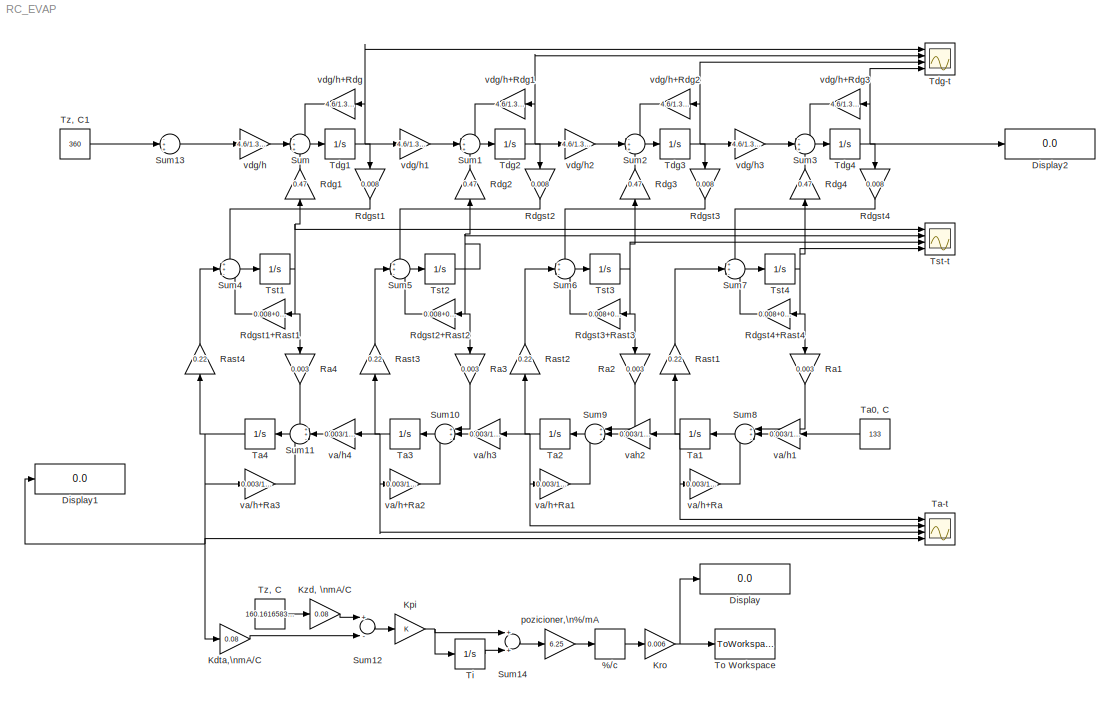
MODEL RC_EVAP
KIND model
BLOCK [RateLimiter] %//c
  Commented = on
  FallingSlewLimit = -5
  RisingSlewLimit = 5
  SID = 115
  SampleTimeMode = inherited
BLOCK [Display] Display
  Commented = on
  Decimation = 1
  Ports = [1]
  SID = 170
BLOCK [Display] Display1
  Decimation = 1
  Ports = [1]
  SID = 177
BLOCK [Display] Display2
  Decimation = 1
  Ports = [1]
  SID = 178
BLOCK [Gain] Kdta,\nmA//C
  Commented = on
  Gain = 0.08
  OutDataTypeStr = Inherit: Inherit via internal rule
  ParamDataTypeStr = Inherit: Inherit via internal rule
  SID = 59
  SaturateOnIntegerOverflow = off
BLOCK [Gain] Kpi
  Commented = on
  OutDataTypeStr = Inherit: Inherit via internal rule
  ParamDataTypeStr = Inherit: Inherit via internal rule
  SID = 133
  SaturateOnIntegerOverflow = off
BLOCK [Gain] Kro
  Commented = on
  Gain = 0.006
  OutDataTypeStr = Inherit: Inherit via internal rule
  ParamDataTypeStr = Inherit: Inherit via internal rule
  SID = 117
  SaturateOnIntegerOverflow = off
BLOCK [Gain] Kzd, \nmA//C
  Commented = on
  Gain = 0.08
  OutDataTypeStr = Inherit: Inherit via internal rule
  ParamDataTypeStr = Inherit: Inherit via internal rule
  SID = 81
  SaturateOnIntegerOverflow = off
BLOCK [Gain] Ra1
  Gain = 0.003
  OutDataTypeStr = Inherit: Inherit via internal rule
  ParamDataTypeStr = Inherit: Inherit via internal rule
  SID = 18
  SaturateOnIntegerOverflow = off
BLOCK [Gain] Ra2
  Gain = 0.003
  OutDataTypeStr = Inherit: Inherit via internal rule
  ParamDataTypeStr = Inherit: Inherit via internal rule
  SID = 19
  SaturateOnIntegerOverflow = off
BLOCK [Gain] Ra3
  Gain = 0.003
  OutDataTypeStr = Inherit: Inherit via internal rule
  ParamDataTypeStr = Inherit: Inherit via internal rule
  SID = 20
  SaturateOnIntegerOverflow = off
BLOCK [Gain] Ra4
  Gain = 0.003
  OutDataTypeStr = Inherit: Inherit via internal rule
  ParamDataTypeStr = Inherit: Inherit via internal rule
  SID = 21
  SaturateOnIntegerOverflow = off
BLOCK [Gain] Rast1
  Gain = 0.22
  OutDataTypeStr = Inherit: Inherit via internal rule
  ParamDataTypeStr = Inherit: Inherit via internal rule
  SID = 22
  SaturateOnIntegerOverflow = off
BLOCK [Gain] Rast2
  Gain = 0.22
  OutDataTypeStr = Inherit: Inherit via internal rule
  ParamDataTypeStr = Inherit: Inherit via internal rule
  SID = 23
  SaturateOnIntegerOverflow = off
BLOCK [Gain] Rast3
  Gain = 0.22
  OutDataTypeStr = Inherit: Inherit via internal rule
  ParamDataTypeStr = Inherit: Inherit via internal rule
  SID = 24
  SaturateOnIntegerOverflow = off
BLOCK [Gain] Rast4
  Gain = 0.22
  OutDataTypeStr = Inherit: Inherit via internal rule
  ParamDataTypeStr = Inherit: Inherit via internal rule
  SID = 25
  SaturateOnIntegerOverflow = off
BLOCK [Gain] Rdg1
  Gain = 0.47
  OutDataTypeStr = Inherit: Inherit via internal rule
  ParamDataTypeStr = Inherit: Inherit via internal rule
  SID = 6
  SaturateOnIntegerOverflow = off
BLOCK [Gain] Rdg2
  Gain = 0.47
  OutDataTypeStr = Inherit: Inherit via internal rule
  ParamDataTypeStr = Inherit: Inherit via internal rule
  SID = 7
  SaturateOnIntegerOverflow = off
BLOCK [Gain] Rdg3
  Gain = 0.47
  OutDataTypeStr = Inherit: Inherit via internal rule
  ParamDataTypeStr = Inherit: Inherit via internal rule
  SID = 8
  SaturateOnIntegerOverflow = off
BLOCK [Gain] Rdg4
  Gain = 0.47
  OutDataTypeStr = Inherit: Inherit via internal rule
  ParamDataTypeStr = Inherit: Inherit via internal rule
  SID = 9
  SaturateOnIntegerOverflow = off
BLOCK [Gain] Rdgst1
  Gain = 0.008
  OutDataTypeStr = Inherit: Inherit via internal rule
  ParamDataTypeStr = Inherit: Inherit via internal rule
  SID = 10
  SaturateOnIntegerOverflow = off
BLOCK [Gain] Rdgst1+Rast1
  Gain = 0.008+0.22
  OutDataTypeStr = Inherit: Inherit via internal rule
  ParamDataTypeStr = Inherit: Inherit via internal rule
  SID = 11
  SaturateOnIntegerOverflow = off
BLOCK [Gain] Rdgst2
  Gain = 0.008
  OutDataTypeStr = Inherit: Inherit via internal rule
  ParamDataTypeStr = Inherit: Inherit via internal rule
  SID = 12
  SaturateOnIntegerOverflow = off
BLOCK [Gain] Rdgst2+Rast2
  Gain = 0.008+0.22
  OutDataTypeStr = Inherit: Inherit via internal rule
  ParamDataTypeStr = Inherit: Inherit via internal rule
  SID = 13
  SaturateOnIntegerOverflow = off
BLOCK [Gain] Rdgst3
  Gain = 0.008
  OutDataTypeStr = Inherit: Inherit via internal rule
  ParamDataTypeStr = Inherit: Inherit via internal rule
  SID = 14
  SaturateOnIntegerOverflow = off
BLOCK [Gain] Rdgst3+Rast3
  Gain = 0.008+0.22
  OutDataTypeStr = Inherit: Inherit via internal rule
  ParamDataTypeStr = Inherit: Inherit via internal rule
  SID = 15
  SaturateOnIntegerOverflow = off
BLOCK [Gain] Rdgst4
  Gain = 0.008
  OutDataTypeStr = Inherit: Inherit via internal rule
  ParamDataTypeStr = Inherit: Inherit via internal rule
  SID = 16
  SaturateOnIntegerOverflow = off
BLOCK [Gain] Rdgst4+Rast4
  Gain = 0.008+0.22
  OutDataTypeStr = Inherit: Inherit via internal rule
  ParamDataTypeStr = Inherit: Inherit via internal rule
  SID = 17
  SaturateOnIntegerOverflow = off
BLOCK [Sum] Sum
  IconShape = round
  InputSameDT = off
  Inputs = -++
  OutDataTypeStr = Inherit: Inherit via internal rule
  Ports = [3, 1]
  SID = 26
  SaturateOnIntegerOverflow = off
BLOCK [Sum] Sum1
  IconShape = round
  InputSameDT = off
  Inputs = -++
  OutDataTypeStr = Inherit: Inherit via internal rule
  Ports = [3, 1]
  SID = 27
  SaturateOnIntegerOverflow = off
BLOCK [Sum] Sum10
  IconShape = round
  InputSameDT = off
  Inputs = ++-
  OutDataTypeStr = Inherit: Inherit via internal rule
  Ports = [3, 1]
  SID = 28
  SaturateOnIntegerOverflow = off
BLOCK [Sum] Sum11
  IconShape = round
  InputSameDT = off
  Inputs = ++-
  OutDataTypeStr = Inherit: Inherit via internal rule
  Ports = [3, 1]
  SID = 29
  SaturateOnIntegerOverflow = off
BLOCK [Sum] Sum12
  Commented = on
  InputSameDT = off
  Inputs = +-
  OutDataTypeStr = Inherit: Inherit via internal rule
  Ports = [2, 1]
  SID = 30
  SaturateOnIntegerOverflow = off
BLOCK [Sum] Sum13
  IconShape = round
  InputSameDT = off
  Inputs = -++
  OutDataTypeStr = Inherit: Inherit via internal rule
  Ports = [3, 1]
  SID = 173
  SaturateOnIntegerOverflow = off
BLOCK [Sum] Sum14
  Commented = on
  InputSameDT = off
  OutDataTypeStr = Inherit: Inherit via internal rule
  Ports = [2, 1]
  SID = 131
  SaturateOnIntegerOverflow = off
BLOCK [Sum] Sum2
  IconShape = round
  InputSameDT = off
  Inputs = -++
  OutDataTypeStr = Inherit: Inherit via internal rule
  Ports = [3, 1]
  SID = 32
  SaturateOnIntegerOverflow = off
BLOCK [Sum] Sum3
  IconShape = round
  InputSameDT = off
  Inputs = -++
  OutDataTypeStr = Inherit: Inherit via internal rule
  Ports = [3, 1]
  SID = 33
  SaturateOnIntegerOverflow = off
BLOCK [Sum] Sum4
  IconShape = round
  InputSameDT = off
  Inputs = ++-
  OutDataTypeStr = Inherit: Inherit via internal rule
  Ports = [3, 1]
  SID = 34
  SaturateOnIntegerOverflow = off
BLOCK [Sum] Sum5
  IconShape = round
  InputSameDT = off
  Inputs = ++-
  OutDataTypeStr = Inherit: Inherit via internal rule
  Ports = [3, 1]
  SID = 35
  SaturateOnIntegerOverflow = off
BLOCK [Sum] Sum6
  IconShape = round
  InputSameDT = off
  Inputs = ++-
  OutDataTypeStr = Inherit: Inherit via internal rule
  Ports = [3, 1]
  SID = 36
  SaturateOnIntegerOverflow = off
BLOCK [Sum] Sum7
  IconShape = round
  InputSameDT = off
  Inputs = ++-
  OutDataTypeStr = Inherit: Inherit via internal rule
  Ports = [3, 1]
  SID = 37
  SaturateOnIntegerOverflow = off
BLOCK [Sum] Sum8
  IconShape = round
  InputSameDT = off
  Inputs = ++-
  OutDataTypeStr = Inherit: Inherit via internal rule
  Ports = [3, 1]
  SID = 38
  SaturateOnIntegerOverflow = off
BLOCK [Sum] Sum9
  IconShape = round
  InputSameDT = off
  Inputs = ++-
  OutDataTypeStr = Inherit: Inherit via internal rule
  Ports = [3, 1]
  SID = 39
  SaturateOnIntegerOverflow = off
BLOCK [Scope] Ta-t
  Floating = off
  NumInputPorts = 4
  Ports = [4]
  SID = 47
  ScopeSpecificationString = Simulink.scopes.TimeScopeBlockCfg('CurrentConfiguration', extmgr.ConfigurationSet(extmgr.Configuration('Core','General UI',true),extmgr.Configuration('Core','Source UI',true),extmgr.Configuration('Sources','WiredSimulink',true,'DataLogging',true,'DataLoggingVariableName','TA','DataLoggingSaveFormat','StructureWithTime','SampleTime','0','DataLoggingDecimation','1','DataLoggingDecimateData',true),ex...<+3755ch>
BLOCK [Constant] Ta0, C
  SID = 158
  Value = 133
BLOCK [Integrator] Ta1
  InitialCondition = 143.67340
  Ports = [1, 1]
  SID = 49
BLOCK [Integrator] Ta2
  InitialCondition = 148.736080
  Ports = [1, 1]
  SID = 50
BLOCK [Integrator] Ta3
  InitialCondition = 154.220450
  Ports = [1, 1]
  SID = 51
BLOCK [Integrator] Ta4
  InitialCondition = 160.161650
  Ports = [1, 1]
  SID = 52
BLOCK [Scope] Tdg-t
  Floating = off
  NumInputPorts = 4
  Ports = [4]
  SID = 41
  ScopeSpecificationString = Simulink.scopes.TimeScopeBlockCfg('CurrentConfiguration', extmgr.ConfigurationSet(extmgr.Configuration('Core','General UI',true),extmgr.Configuration('Core','Source UI',true),extmgr.Configuration('Sources','WiredSimulink',true,'DataLogging',true,'DataLoggingVariableName','TDG','DataLoggingSaveFormat','StructureWithTime','DataLoggingDecimation','1','DataLoggingDecimateData',true),extmgr.Configurati...<+3745ch>
BLOCK [Integrator] Tdg1
  InitialCondition = 283.30650
  Ports = [1, 1]
  SID = 43
BLOCK [Integrator] Tdg2
  InitialCondition = 267.89660
  Ports = [1, 1]
  SID = 44
BLOCK [Integrator] Tdg3
  InitialCondition = 253.67150
  Ports = [1, 1]
  SID = 45
BLOCK [Integrator] Tdg4
  InitialCondition = 240.54030
  Ports = [1, 1]
  SID = 46
BLOCK [Integrator] Ti
  Commented = on
  InitialCondition = 8000
  LowerSaturationLimit = 6012
  Ports = [1, 1]
  SID = 141
  UpperSaturationLimit = 8012
BLOCK [ToWorkspace] To Workspace
  Commented = on
  MaxDataPoints = inf
  Ports = [1]
  SID = 110
  SampleTime = -1
  VariableName = Tdg0
BLOCK [Scope] Tst-t
  Floating = off
  NumInputPorts = 4
  Ports = [4]
  SID = 54
  ScopeSpecificationString = C++SS(StrPVP('Location','[5, 49, 1371, 737]'),StrPVP('Open','off'),StrPVP('ZoomMode','xonly'),MxPVP('AxesTitles',53,'struct(''axes1'',''%<SignalLabel>'',''axes2'',''%<SignalLabel>'',''axes3'',''%<SignalLabel>'',''axes4'',''%<SignalLabel>'')'),MxPVP('ScopeGraphics',56,'struct(''FigureColor'',''[0.5 0.5 0.5]'',''AxesColor'',''[0 0 0]'',''AxesTickColor'',''[1 1 1]'',''LineColors'',''[1 1 0;1 0 1;0 1 ...<+461ch>
BLOCK [Integrator] Tst1
  InitialCondition = 164.48250
  Ports = [1, 1]
  SID = 55
BLOCK [Integrator] Tst2
  InitialCondition = 158.20900
  Ports = [1, 1]
  SID = 56
BLOCK [Integrator] Tst3
  InitialCondition = 152.41800
  Ports = [1, 1]
  SID = 57
BLOCK [Integrator] Tst4
  InitialCondition = 147.07220
  Ports = [1, 1]
  SID = 58
BLOCK [Constant] Tz, C
  Commented = on
  SID = 40
  Value = 160.1616583845354
BLOCK [Constant] Tz, C1
  SID = 172
  Value = 360
BLOCK [Gain] pozicioner,\n%//mA
  Commented = on
  Gain = 6.25
  OutDataTypeStr = Inherit: Inherit via internal rule
  ParamDataTypeStr = Inherit: Inherit via internal rule
  SID = 116
  SaturateOnIntegerOverflow = off
BLOCK [Gain] va//h+Ra
  Gain = 0.003/1.375+0.003
  OutDataTypeStr = Inherit: Inherit via internal rule
  ParamDataTypeStr = Inherit: Inherit via internal rule
  SID = 71
  SaturateOnIntegerOverflow = off
BLOCK [Gain] va//h+Ra1
  Gain = 0.003/1.375+0.003
  OutDataTypeStr = Inherit: Inherit via internal rule
  ParamDataTypeStr = Inherit: Inherit via internal rule
  SID = 72
  SaturateOnIntegerOverflow = off
BLOCK [Gain] va//h+Ra2
  Gain = 0.003/1.375+0.003
  OutDataTypeStr = Inherit: Inherit via internal rule
  ParamDataTypeStr = Inherit: Inherit via internal rule
  SID = 73
  SaturateOnIntegerOverflow = off
BLOCK [Gain] va//h+Ra3
  Gain = 0.003/1.375+0.003
  OutDataTypeStr = Inherit: Inherit via internal rule
  ParamDataTypeStr = Inherit: Inherit via internal rule
  SID = 74
  SaturateOnIntegerOverflow = off
BLOCK [Gain] va//h1
  Gain = 0.003/1.375
  OutDataTypeStr = Inherit: Inherit via internal rule
  ParamDataTypeStr = Inherit: Inherit via internal rule
  SID = 75
  SaturateOnIntegerOverflow = off
BLOCK [Gain] va//h3
  Gain = 0.003/1.375
  OutDataTypeStr = Inherit: Inherit via internal rule
  ParamDataTypeStr = Inherit: Inherit via internal rule
  SID = 77
  SaturateOnIntegerOverflow = off
BLOCK [Gain] va//h4
  Gain = 0.003/1.375
  OutDataTypeStr = Inherit: Inherit via internal rule
  ParamDataTypeStr = Inherit: Inherit via internal rule
  SID = 78
  SaturateOnIntegerOverflow = off
BLOCK [Gain] vah2
  Gain = 0.003/1.375
  OutDataTypeStr = Inherit: Inherit via internal rule
  ParamDataTypeStr = Inherit: Inherit via internal rule
  SID = 76
  SaturateOnIntegerOverflow = off
BLOCK [Gain] vdg//h
  Gain = 4.6/1.375
  OutDataTypeStr = Inherit: Inherit via internal rule
  ParamDataTypeStr = Inherit: Inherit via internal rule
  SID = 63
  SaturateOnIntegerOverflow = off
BLOCK [Gain] vdg//h+Rdg
  Gain = 4.6/1.375+0.47
  OutDataTypeStr = Inherit: Inherit via internal rule
  ParamDataTypeStr = Inherit: Inherit via internal rule
  SID = 64
  SaturateOnIntegerOverflow = off
BLOCK [Gain] vdg//h+Rdg1
  Gain = 4.6/1.375+0.47
  OutDataTypeStr = Inherit: Inherit via internal rule
  ParamDataTypeStr = Inherit: Inherit via internal rule
  SID = 65
  SaturateOnIntegerOverflow = off
BLOCK [Gain] vdg//h+Rdg2
  Gain = 4.6/1.375+0.47
  OutDataTypeStr = Inherit: Inherit via internal rule
  ParamDataTypeStr = Inherit: Inherit via internal rule
  SID = 66
  SaturateOnIntegerOverflow = off
BLOCK [Gain] vdg//h+Rdg3
  Gain = 4.6/1.375+0.47
  OutDataTypeStr = Inherit: Inherit via internal rule
  ParamDataTypeStr = Inherit: Inherit via internal rule
  SID = 67
  SaturateOnIntegerOverflow = off
BLOCK [Gain] vdg//h1
  Gain = 4.6/1.375
  OutDataTypeStr = Inherit: Inherit via internal rule
  ParamDataTypeStr = Inherit: Inherit via internal rule
  SID = 68
  SaturateOnIntegerOverflow = off
BLOCK [Gain] vdg//h2
  Gain = 4.6/1.375
  OutDataTypeStr = Inherit: Inherit via internal rule
  ParamDataTypeStr = Inherit: Inherit via internal rule
  SID = 69
  SaturateOnIntegerOverflow = off
BLOCK [Gain] vdg//h3
  Gain = 4.6/1.375
  OutDataTypeStr = Inherit: Inherit via internal rule
  ParamDataTypeStr = Inherit: Inherit via internal rule
  SID = 70
  SaturateOnIntegerOverflow = off
LINE %//c:1 -> Kro:1
LINE Kdta,\nmA//C:1 -> Sum12:2
NET Kpi:1 -> Sum14:1, Ti:1
NET Kro:1 -> Display:1, To Workspace:1
LINE Kzd, \nmA//C:1 -> Sum12:1
LINE Ra1:1 -> Sum8:1
LINE Ra2:1 -> Sum9:1
LINE Ra3:1 -> Sum10:1
LINE Ra4:1 -> Sum11:1
LINE Rast1:1 -> Sum7:2
LINE Rast2:1 -> Sum6:2
LINE Rast3:1 -> Sum5:2
LINE Rast4:1 -> Sum4:2
LINE Rdg1:1 -> Sum:3
LINE Rdg2:1 -> Sum1:3
LINE Rdg3:1 -> Sum2:3
LINE Rdg4:1 -> Sum3:3
LINE Rdgst1+Rast1:1 -> Sum4:3
LINE Rdgst1:1 -> Sum4:1
LINE Rdgst2+Rast2:1 -> Sum5:3
LINE Rdgst2:1 -> Sum5:1
LINE Rdgst3+Rast3:1 -> Sum6:3
LINE Rdgst3:1 -> Sum6:1
LINE Rdgst4+Rast4:1 -> Sum7:3
LINE Rdgst4:1 -> Sum7:1
LINE Sum10:1 -> Ta3:1
LINE Sum11:1 -> Ta4:1
LINE Sum12:1 -> Kpi:1
LINE Sum13:1 -> vdg//h:1
LINE Sum14:1 -> pozicioner,\n%//mA:1
LINE Sum1:1 -> Tdg2:1
LINE Sum2:1 -> Tdg3:1
LINE Sum3:1 -> Tdg4:1
LINE Sum4:1 -> Tst1:1
LINE Sum5:1 -> Tst2:1
LINE Sum6:1 -> Tst3:1
LINE Sum7:1 -> Tst4:1
LINE Sum8:1 -> Ta1:1
LINE Sum9:1 -> Ta2:1
LINE Sum:1 -> Tdg1:1
LINE Ta0, C:1 -> va//h1:1
NET Ta1:1 -> Rast1:1, Ta-t:1, va//h+Ra:1, vah2:1
NET Ta2:1 -> Rast2:1, Ta-t:2, va//h+Ra1:1, va//h3:1
NET Ta3:1 -> Rast3:1, Ta-t:3, va//h+Ra2:1, va//h4:1
NET Ta4:1 -> Display1:1, Kdta,\nmA//C:1, Rast4:1, Ta-t:4, va//h+Ra3:1
NET Tdg1:1 -> Rdgst1:1, Tdg-t:1, vdg//h+Rdg:1, vdg//h1:1
NET Tdg2:1 -> Rdgst2:1, Tdg-t:2, vdg//h+Rdg1:1, vdg//h2:1
NET Tdg3:1 -> Rdgst3:1, Tdg-t:3, vdg//h+Rdg2:1, vdg//h3:1
NET Tdg4:1 -> Display2:1, Rdgst4:1, Tdg-t:4, vdg//h+Rdg3:1
LINE Ti:1 -> Sum14:2
NET Tst1:1 -> Ra4:1, Rdg1:1, Rdgst1+Rast1:1, Tst-t:1
NET Tst2:1 -> Ra3:1, Rdg2:1, Rdgst2+Rast2:1, Tst-t:2
NET Tst3:1 -> Ra2:1, Rdg3:1, Rdgst3+Rast3:1, Tst-t:3
NET Tst4:1 -> Ra1:1, Rdg4:1, Rdgst4+Rast4:1, Tst-t:4
LINE Tz, C1:1 -> Sum13:2
LINE Tz, C:1 -> Kzd, \nmA//C:1
LINE pozicioner,\n%//mA:1 -> %//c:1
LINE va//h+Ra1:1 -> Sum9:3
LINE va//h+Ra2:1 -> Sum10:3
LINE va//h+Ra3:1 -> Sum11:3
LINE va//h+Ra:1 -> Sum8:3
LINE va//h1:1 -> Sum8:2
LINE va//h3:1 -> Sum10:2
LINE va//h4:1 -> Sum11:2
LINE vah2:1 -> Sum9:2
LINE vdg//h+Rdg1:1 -> Sum1:1
LINE vdg//h+Rdg2:1 -> Sum2:1
LINE vdg//h+Rdg3:1 -> Sum3:1
LINE vdg//h+Rdg:1 -> Sum:1
LINE vdg//h1:1 -> Sum1:2
LINE vdg//h2:1 -> Sum2:2
LINE vdg//h3:1 -> Sum3:2
LINE vdg//h:1 -> Sum:2
note: NET lines group one-source signal fan-out (src -> all destinations, sorted); 1:1 wires keep LINE
